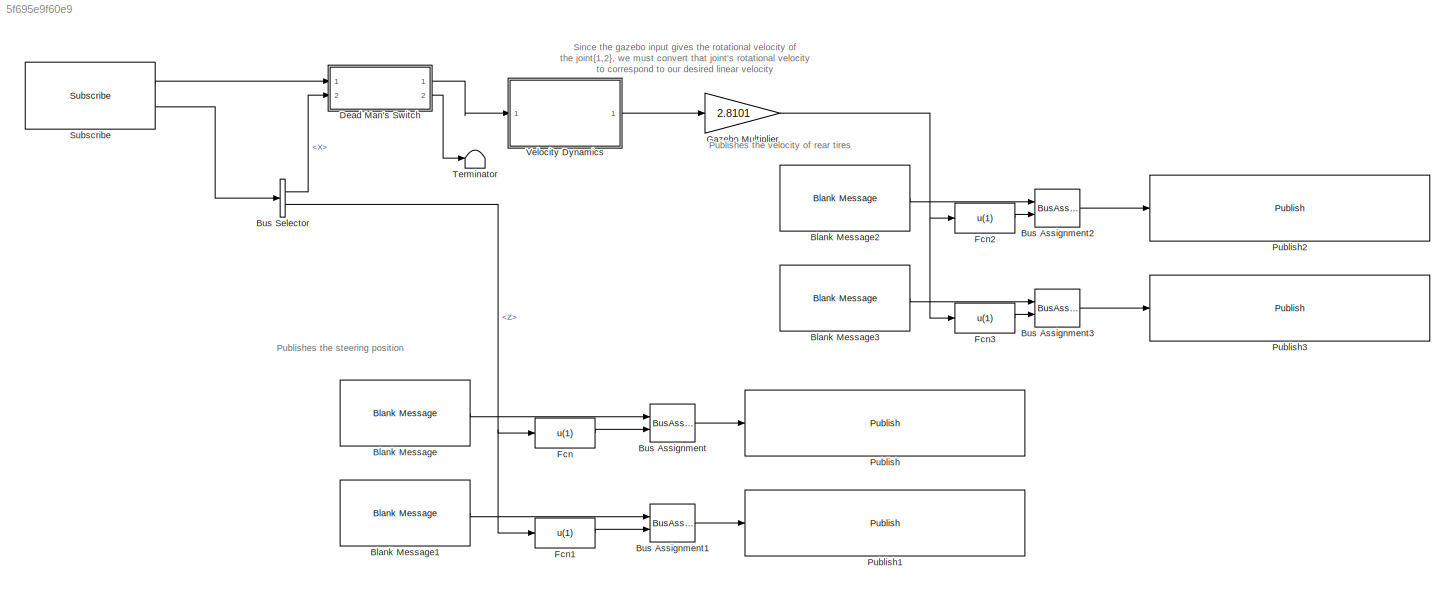
MODEL slx_5f695e9f60e9
KIND model
CONFIG AbsTol = auto
CONFIG FixedStep = 0.02
CONFIG MaxStep = auto
CONFIG MinStep = auto
CONFIG RelTol = 1e-3
CONFIG SampleTimeConstraint = Unconstrained
CONFIG Solver = FixedStepAuto
CONFIG SolverMode = Auto
CONFIG SolverName = FixedStepAuto
CONFIG StartTime = 0.0
CONFIG StopTime = inf
BLOCK [Reference] Blank Message  REF=robotlib/Blank Message
  Ports = [0, 1]
  SourceBlock = robotlib/Blank Message
  SourceLibraryInfo = This block requires Robotics System Toolbox
  SourceType = ROS Blank Message
BLOCK [Reference] Blank Message1  REF=robotlib/Blank Message
  Ports = [0, 1]
  SourceBlock = robotlib/Blank Message
  SourceLibraryInfo = This block requires Robotics System Toolbox
  SourceType = ROS Blank Message
BLOCK [Reference] Blank Message2  REF=robotlib/Blank Message
  Ports = [0, 1]
  SourceBlock = robotlib/Blank Message
  SourceLibraryInfo = This block requires Robotics System Toolbox
  SourceType = ROS Blank Message
BLOCK [Reference] Blank Message3  REF=robotlib/Blank Message
  Ports = [0, 1]
  SourceBlock = robotlib/Blank Message
  SourceLibraryInfo = This block requires Robotics System Toolbox
  SourceType = ROS Blank Message
BLOCK [BusAssignment] Bus Assignment
  AssignedSignals = Data
  Ports = [2, 1]
BLOCK [BusAssignment] Bus Assignment1
  AssignedSignals = Data
  Ports = [2, 1]
BLOCK [BusAssignment] Bus Assignment2
  AssignedSignals = Data
  Ports = [2, 1]
BLOCK [BusAssignment] Bus Assignment3
  AssignedSignals = Data
  Ports = [2, 1]
BLOCK [BusSelector] Bus Selector
  OutputSignals = Linear.X,Angular.Z
  Ports = [1, 2]
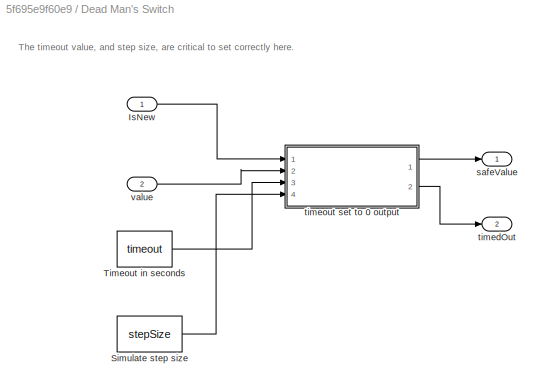
BLOCK [SubSystem] Dead Man's Switch
  Ports = [2, 2]
  RequestExecContextInheritance = off
  TreatAsAtomicUnit = on
  Variant = off
BLOCK [Inport] Dead Man's Switch/IsNew
  IconDisplay = Port number
BLOCK [Constant] Dead Man's Switch/Simulate step size
  Value = stepSize
BLOCK [Constant] Dead Man's Switch/Timeout in seconds
  Value = timeout
BLOCK [Outport] Dead Man's Switch/safeValue
  IconDisplay = Port number
  InitialOutput = [0]
BLOCK [Outport] Dead Man's Switch/timedOut
  IconDisplay = Port number
  InitialOutput = [0]
  Port = 2
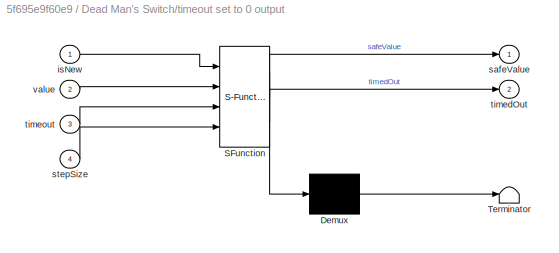
BLOCK [SubSystem] Dead Man's Switch/timeout set to 0 output
  ErrorFcn = Stateflow.Translate.translate
  PermitHierarchicalResolution = ExplicitOnly
  Ports = [4, 2]
  RequestExecContextInheritance = off
  SFBlockType = MATLAB Function
  TreatAsAtomicUnit = on
  Variant = off
BLOCK [Demux] Dead Man's Switch/timeout set to 0 output/ Demux 
  Outputs = 1
  Ports = [1, 1]
BLOCK [S-Function] Dead Man's Switch/timeout set to 0 output/ SFunction 
  EnableBusSupport = on
  FunctionName = sf_sfun
  PortCounts = [4 3]
  Ports = [4, 3]
  SFunctionDeploymentMode = off
  Tag = Stateflow S-Function cmdvel2gazebo 2
BLOCK [Terminator] Dead Man's Switch/timeout set to 0 output/ Terminator 
BLOCK [Inport] Dead Man's Switch/timeout set to 0 output/isNew
  IconDisplay = Port number
BLOCK [Outport] Dead Man's Switch/timeout set to 0 output/safeValue
  IconDisplay = Port number
BLOCK [Inport] Dead Man's Switch/timeout set to 0 output/stepSize
  IconDisplay = Port number
  Port = 4
BLOCK [Outport] Dead Man's Switch/timeout set to 0 output/timedOut
  IconDisplay = Port number
  Port = 2
BLOCK [Inport] Dead Man's Switch/timeout set to 0 output/timeout
  IconDisplay = Port number
  Port = 3
BLOCK [Inport] Dead Man's Switch/timeout set to 0 output/value
  IconDisplay = Port number
  Port = 2
BLOCK [Inport] Dead Man's Switch/value
  IconDisplay = Port number
  Port = 2
BLOCK [Fcn] Fcn
  Expr = u(1)
BLOCK [Fcn] Fcn1
  Expr = u(1)
BLOCK [Fcn] Fcn2
  Expr = u(1)
BLOCK [Fcn] Fcn3
  Expr = u(1)
BLOCK [Gain] Gazebo Multiplier
  Gain = 2.8101
  OutDataTypeStr = Inherit: Inherit via internal rule
  ParamDataTypeStr = Inherit: Inherit via internal rule
  SaturateOnIntegerOverflow = off
BLOCK [Reference] Publish  REF=robotlib/Publish
  Ports = [1]
  SourceBlock = robotlib/Publish
  SourceLibraryInfo = This block requires Robotics System Toolbox
  SourceType = ROS Publish
BLOCK [Reference] Publish1  REF=robotlib/Publish
  Ports = [1]
  SourceBlock = robotlib/Publish
  SourceLibraryInfo = This block requires Robotics System Toolbox
  SourceType = ROS Publish
BLOCK [Reference] Publish2  REF=robotlib/Publish
  Ports = [1]
  SourceBlock = robotlib/Publish
  SourceLibraryInfo = This block requires Robotics System Toolbox
  SourceType = ROS Publish
BLOCK [Reference] Publish3  REF=robotlib/Publish
  Ports = [1]
  SourceBlock = robotlib/Publish
  SourceLibraryInfo = This block requires Robotics System Toolbox
  SourceType = ROS Publish
BLOCK [Reference] Subscribe  REF=robotlib/Subscribe
  Ports = [0, 2]
  SourceBlock = robotlib/Subscribe
  SourceLibraryInfo = This block requires Robotics System Toolbox
  SourceType = ROS Subscribe
BLOCK [Terminator] Terminator
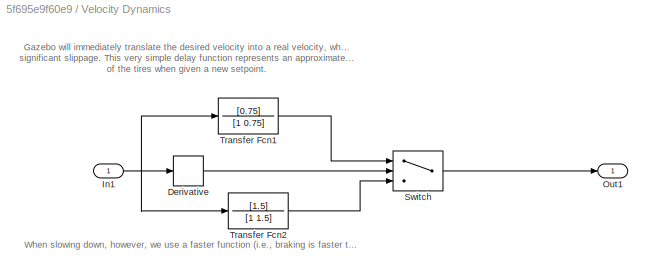
BLOCK [SubSystem] Velocity Dynamics
  Ports = [1, 1]
  RequestExecContextInheritance = off
  Variant = off
BLOCK [Derivative] Velocity Dynamics/Derivative
BLOCK [Inport] Velocity Dynamics/In1
  IconDisplay = Port number
BLOCK [Outport] Velocity Dynamics/Out1
  IconDisplay = Port number
BLOCK [Switch] Velocity Dynamics/Switch
  Criteria = u2 > Threshold
  InputSameDT = off
  SaturateOnIntegerOverflow = off
BLOCK [TransferFcn] Velocity Dynamics/Transfer Fcn1
  Denominator = [1 0.75]
  Numerator = [0.75]
BLOCK [TransferFcn] Velocity Dynamics/Transfer Fcn2
  Denominator = [1 1.5]
  Numerator = [1.5]
ANNOTATION (root): Publishes the steering position
ANNOTATION (root): Publishes the velocity of rear tires
ANNOTATION (root): Since the gazebo input gives the rotational velocity of the joint{1,2}, we must convert that joint's rotational velocity to correspond to our desired linear velocity
ANNOTATION Dead Man's Switch: The timeout value, and step size, are critical to set correctly here.
ANNOTATION Velocity Dynamics: Gazebo will immediately translate the desired velocity into a real velocity, which may result in significant slippage. This very simple delay function represents an approximate dynamical delay of the tires when given a new setpoint.
ANNOTATION Velocity Dynamics: When slowing down, however, we use a faster function (i.e., braking is faster than accelerating)
LINE Blank Message1:1 -> Bus Assignment1:1
LINE Blank Message2:1 -> Bus Assignment2:1
LINE Blank Message3:1 -> Bus Assignment3:1
LINE Blank Message:1 -> Bus Assignment:1
LINE Bus Assignment1:1 -> Publish1:1
LINE Bus Assignment2:1 -> Publish2:1
LINE Bus Assignment3:1 -> Publish3:1
LINE Bus Assignment:1 -> Publish:1
LINE Bus Selector:1 -> Dead Man's Switch:2
NET Bus Selector:2 -> Fcn1:1, Fcn:1
LINE Dead Man's Switch/IsNew:1 -> Dead Man's Switch/timeout set to 0 output:1
LINE Dead Man's Switch/Simulate step size:1 -> Dead Man's Switch/timeout set to 0 output:4
LINE Dead Man's Switch/Timeout in seconds:1 -> Dead Man's Switch/timeout set to 0 output:3
LINE Dead Man's Switch/timeout set to 0 output:1 -> Dead Man's Switch/safeValue:1
LINE Dead Man's Switch/timeout set to 0 output:2 -> Dead Man's Switch/timedOut:1
LINE Dead Man's Switch/value:1 -> Dead Man's Switch/timeout set to 0 output:2
LINE Dead Man's Switch:1 -> Velocity Dynamics:1
LINE Dead Man's Switch:2 -> Terminator:1
LINE Fcn1:1 -> Bus Assignment1:2
LINE Fcn2:1 -> Bus Assignment2:2
LINE Fcn3:1 -> Bus Assignment3:2
LINE Fcn:1 -> Bus Assignment:2
NET Gazebo Multiplier:1 -> Fcn2:1, Fcn3:1
LINE Subscribe:1 -> Dead Man's Switch:1
LINE Subscribe:2 -> Bus Selector:1
LINE Velocity Dynamics/Derivative:1 -> Velocity Dynamics/Switch:2
NET Velocity Dynamics/In1:1 -> Velocity Dynamics/Derivative:1, Velocity Dynamics/Transfer Fcn1:1, Velocity Dynamics/Transfer Fcn2:1
LINE Velocity Dynamics/Switch:1 -> Velocity Dynamics/Out1:1
LINE Velocity Dynamics/Transfer Fcn1:1 -> Velocity Dynamics/Switch:1
LINE Velocity Dynamics/Transfer Fcn2:1 -> Velocity Dynamics/Switch:3
LINE Velocity Dynamics:1 -> Gazebo Multiplier:1
note: NET lines group one-source signal fan-out (src -> all destinations, sorted); 1:1 wires keep LINE
CHART Dead Man's Switch/timeout set to 0 output states=1 transitions=1
  STATE_LABEL 'eML_blk_kernel()'
  STATE_LABEL 'SCRIPT:\nfunction [safeValue,timedOut] = fcn(isNew,value,timeout,stepSize)\n%#codegen\npersistent sinceLastMsg\ntimedOut=true;\nif isempty(sinceLastMsg)\n    sinceLastMsg=(timeout/stepSize)+1;\nend\n\nsafeValue=0;\n% if no new message\n% after timeout, we output 0\nif( isNew == true )\n    sinceLastMsg = 0;\nelse\n    sinceLastMsg = sinceLastMsg+1;\nend\n\n% Note: we require step size as an input here, and depend o...<+195ch>'
